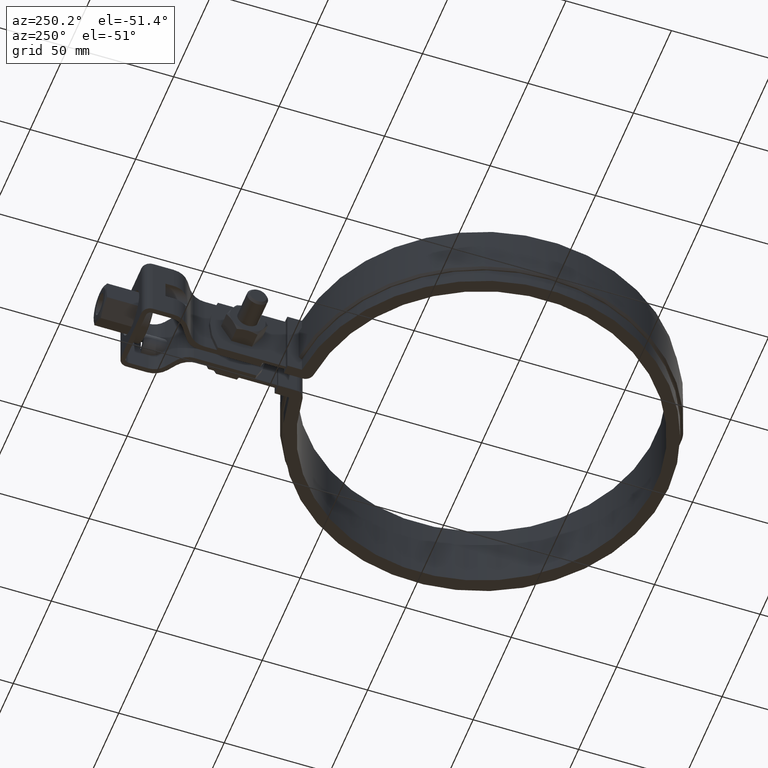
[diagram: clean part render]
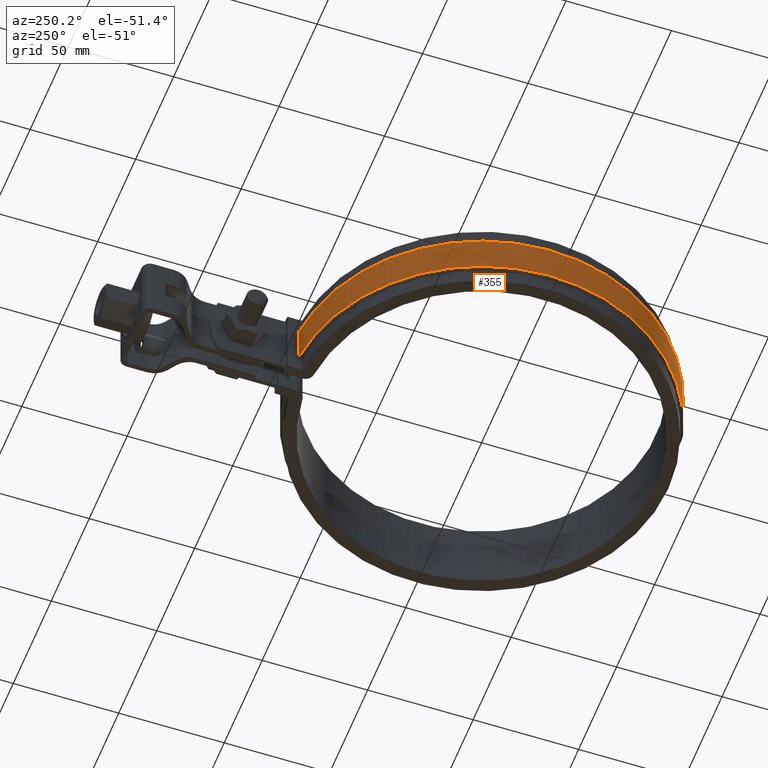
[diagram: same view with one face highlighted and labeled with its STEP entity id]
A machine part, auxiliary view. The second image highlights one B-rep face of the part: STEP entity #355.
In plain terms, the highlighted cylindrical surface (partial cylindrical patch) has radius 90.1 mm, axis along (0, 0, 1).
Its self-contained STEP definition (entity closure, byte-faithful):
#355 = ADVANCED_FACE( '', ( #578 ), #579, .T. );
#578 = FACE_OUTER_BOUND( '', #1705, .T. );
#579 = CYLINDRICAL_SURFACE( '', #1706, 90.1000000000000 );
#1705 = EDGE_LOOP( '', ( #3143, #3144, #3145, #3146 ) );
#1706 = AXIS2_PLACEMENT_3D( '', #3147, #3148, #3149 );
#3143 = ORIENTED_EDGE( '', *, *, #5150, .F. );
#3144 = ORIENTED_EDGE( '', *, *, #5151, .T. );
#3145 = ORIENTED_EDGE( '', *, *, #5152, .T. );
#3146 = ORIENTED_EDGE( '', *, *, #5153, .T. );
#3147 = CARTESIAN_POINT( '', ( 3.46944695195361E-015, 2.77555756156289E-014, -26.0000000000000 ) );
#3148 = DIRECTION( '', ( 0.000000000000000, 0.000000000000000, 1.00000000000000 ) );
#3149 = DIRECTION( '', ( 0.279817321684446, 0.960053262316911, 0.000000000000000 ) );
#5150 = EDGE_CURVE( '', #5781, #5782, #5783, .F. );
#5151 = EDGE_CURVE( '', #5781, #5784, #5785, .T. );
#5152 = EDGE_CURVE( '', #5784, #5786, #5787, .T. );
#5153 = EDGE_CURVE( '', #5786, #5782, #5788, .T. );
#5781 = VERTEX_POINT( '', #8201 );
#5782 = VERTEX_POINT( '', #8202 );
#5783 = LINE( '', #8203, #8204 );
#5784 = VERTEX_POINT( '', #8205 );
#5785 = CIRCLE( '', #8206, 90.1000000000000 );
#5786 = VERTEX_POINT( '', #8207 );
#5787 = LINE( '', #8208, #8209 );
#5788 = CIRCLE( '', #8210, 90.1000000000000 );
#8201 = CARTESIAN_POINT( '', ( -8.40000000000000, 89.7075805046597, -25.0000000000000 ) );
#8202 = CARTESIAN_POINT( '', ( -8.40000000000000, 89.7075805046597, -6.99999999999998 ) );
#8203 = CARTESIAN_POINT( '', ( -8.40000000000000, 89.7075805046597, -26.0000000000000 ) );
#8204 = VECTOR( '', #9789, 1000.00000000000 );
#8205 = CARTESIAN_POINT( '', ( -25.2115406837686, -86.5007989347536, -25.0000000000000 ) );
#8206 = AXIS2_PLACEMENT_3D( '', #9790, #9791, #9792 );
#8207 = CARTESIAN_POINT( '', ( -25.2115406837686, -86.5007989347536, -6.99999999999999 ) );
#8208 = CARTESIAN_POINT( '', ( -25.2115406837686, -86.5007989347536, -26.0000000000000 ) );
#8209 = VECTOR( '', #9793, 1000.00000000000 );
#8210 = AXIS2_PLACEMENT_3D( '', #9794, #9795, #9796 );
#9789 = DIRECTION( '', ( 0.000000000000000, 0.000000000000000, -1.00000000000000 ) );
#9790 = CARTESIAN_POINT( '', ( 3.46944695195361E-015, 2.77555756156289E-014, -25.0000000000000 ) );
#9791 = DIRECTION( '', ( 0.000000000000000, 0.000000000000000, 1.00000000000000 ) );
#9792 = DIRECTION( '', ( 1.00000000000000, 0.000000000000000, 0.000000000000000 ) );
#9793 = DIRECTION( '', ( 0.000000000000000, 0.000000000000000, 1.00000000000000 ) );
#9794 = CARTESIAN_POINT( '', ( 3.46944695195361E-015, 2.77555756156289E-014, -6.99999999999999 ) );
#9795 = DIRECTION( '', ( 0.000000000000000, 0.000000000000000, -1.00000000000000 ) );
#9796 = DIRECTION( '', ( -1.00000000000000, 0.000000000000000, 0.000000000000000 ) );